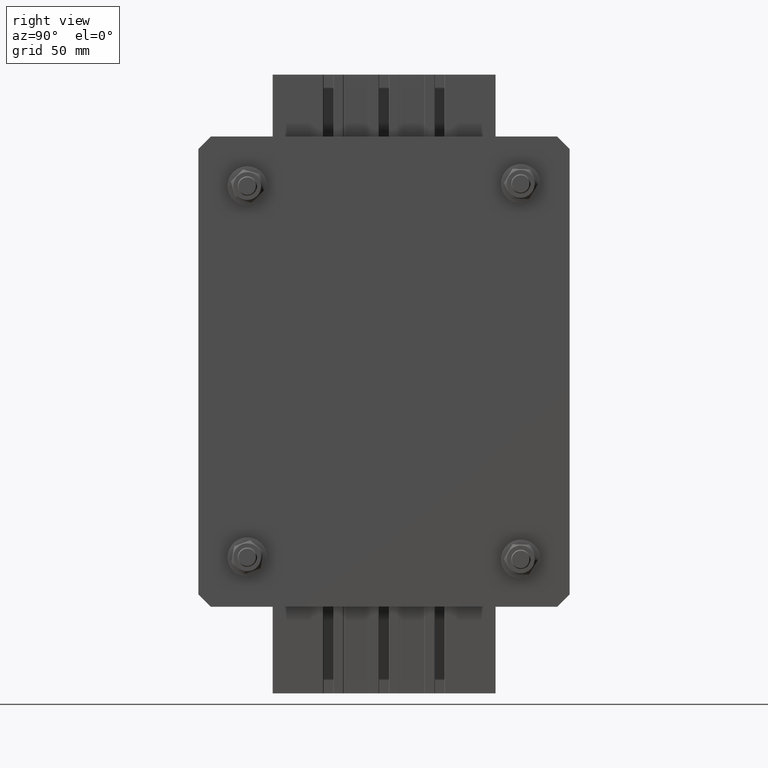
[diagram: clean part render]
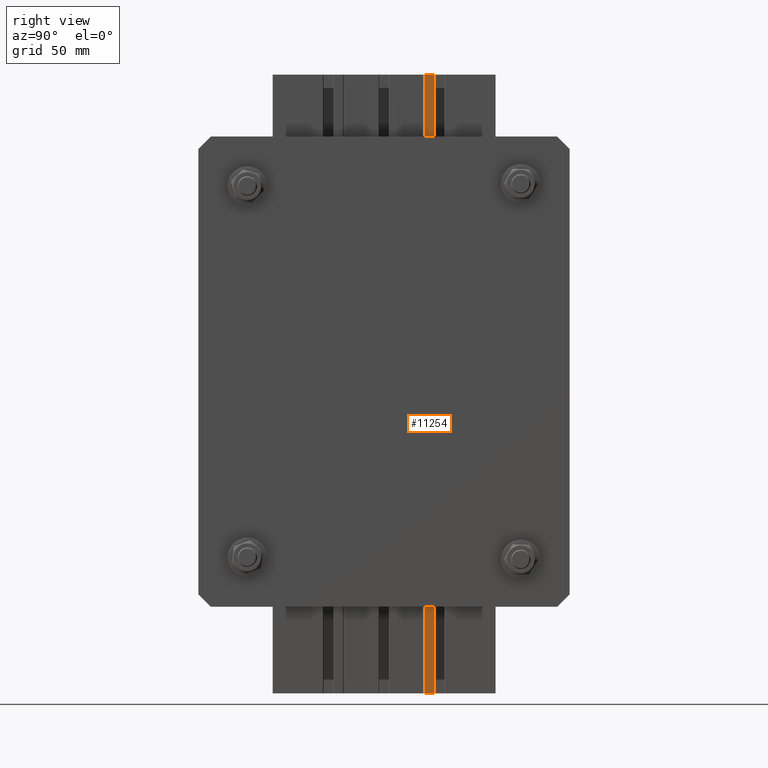
[diagram: same view with one face highlighted and labeled with its STEP entity id]
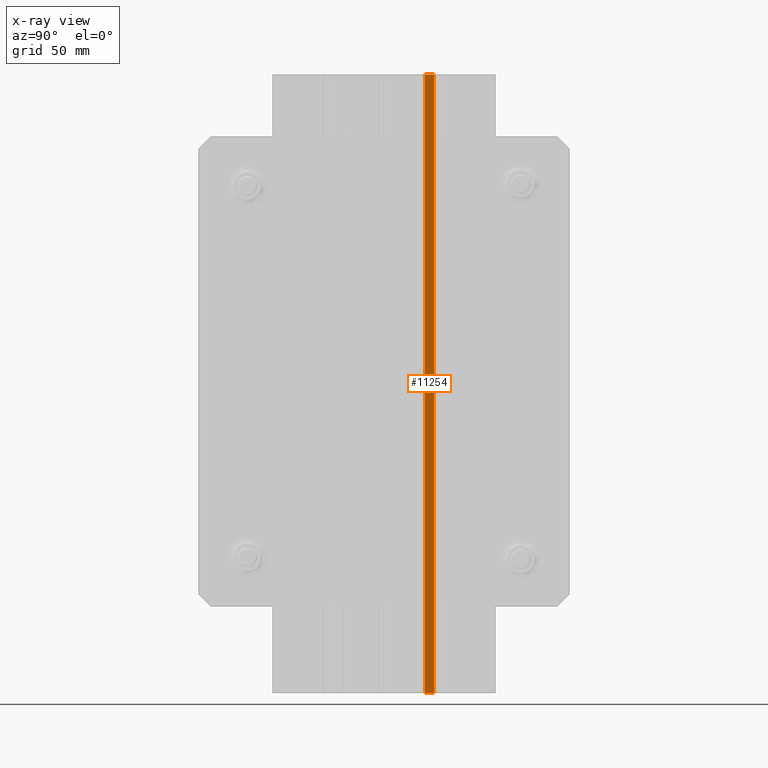
[diagram: x-ray of the same camera — body ghosted, the highlighted face saturated]
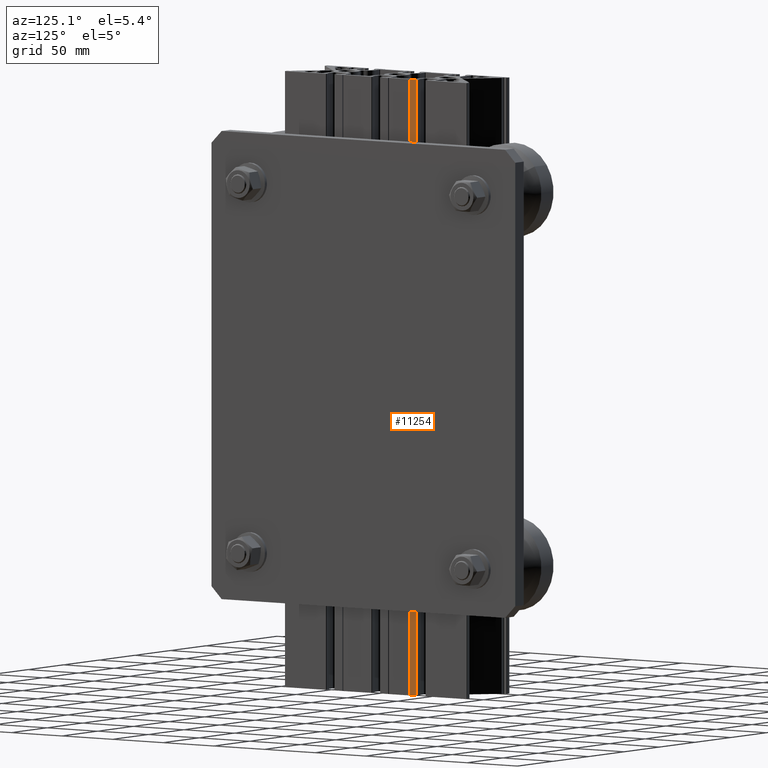
[diagram: same view with one face highlighted and labeled with its STEP entity id]
A machine part, right view. The second image highlights one B-rep face of the part: STEP entity #11254.
The next image is the same camera in x-ray: the body ghosted, the highlighted face saturated — about 0% of this face is hidden behind the body in this view.
A second angle (auxiliary view) of the same face is appended — the face is thin or edge-on in the first view.
In plain terms, the highlighted planar face has unit normal (1, -0, 0).
Its self-contained STEP definition (entity closure, byte-faithful):
#628=PLANE('',#12419);
#1110=FACE_OUTER_BOUND('',#1729,.T.);
#1729=EDGE_LOOP('',(#8782,#8783,#8784,#8785));
#2188=LINE('',#16678,#3060);
#2494=LINE('',#17751,#3366);
#2618=LINE('',#18031,#3490);
#2619=LINE('',#18033,#3491);
#3060=VECTOR('',#13273,10.);
#3366=VECTOR('',#14265,10.);
#3490=VECTOR('',#14621,10.);
#3491=VECTOR('',#14624,10.);
#4569=VERTEX_POINT('',#16675);
#4570=VERTEX_POINT('',#16677);
#4993=VERTEX_POINT('',#17748);
#4994=VERTEX_POINT('',#17750);
#5732=EDGE_CURVE('',#4569,#4570,#2188,.T.);
#6268=EDGE_CURVE('',#4993,#4994,#2494,.T.);
#6409=EDGE_CURVE('',#4993,#4570,#2618,.T.);
#6410=EDGE_CURVE('',#4994,#4569,#2619,.T.);
#8782=ORIENTED_EDGE('',*,*,#6409,.T.);
#8783=ORIENTED_EDGE('',*,*,#5732,.F.);
#8784=ORIENTED_EDGE('',*,*,#6410,.F.);
#8785=ORIENTED_EDGE('',*,*,#6268,.F.);
#11254=ADVANCED_FACE('',(#1110),#628,.T.);
#12419=AXIS2_PLACEMENT_3D('',#18032,#14622,#14623);
#13273=DIRECTION('',(5.92118946466759E-16,1.,0.));
#14265=DIRECTION('',(-5.92118946466759E-16,-1.,0.));
#14621=DIRECTION('',(0.,0.,1.));
#14622=DIRECTION('center_axis',(1.,-5.92118946466759E-16,0.));
#14623=DIRECTION('ref_axis',(5.92118946466759E-16,1.,0.));
#14624=DIRECTION('',(0.,0.,1.));
#16675=CARTESIAN_POINT('',(30.0000000076852,33.0000000095639,450.));
#16677=CARTESIAN_POINT('',(30.0000000076852,40.5000000095638,450.));
#16678=CARTESIAN_POINT('',(30.0000000076852,33.0000000095639,450.));
#17748=CARTESIAN_POINT('',(30.0000000076852,40.5000000095638,-50.));
#17750=CARTESIAN_POINT('',(30.0000000076852,33.0000000095639,-50.));
#17751=CARTESIAN_POINT('',(30.0000000076852,33.0000000095639,-50.));
#18031=CARTESIAN_POINT('',(30.0000000076852,40.5000000095638,0.));
#18032=CARTESIAN_POINT('Origin',(30.0000000076852,33.0000000095639,0.));
#18033=CARTESIAN_POINT('',(30.0000000076852,33.0000000095639,0.));